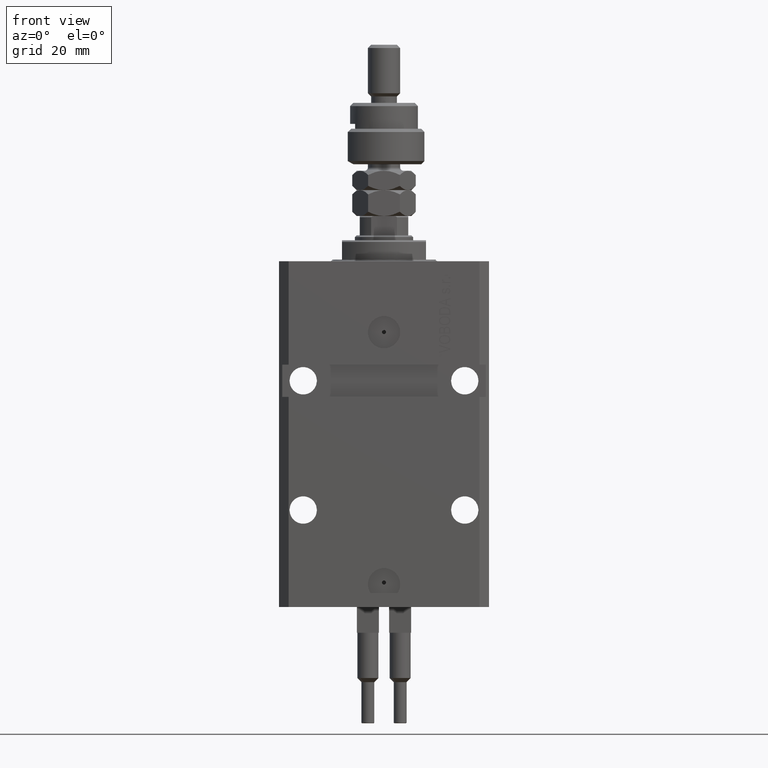
[diagram: clean part render]
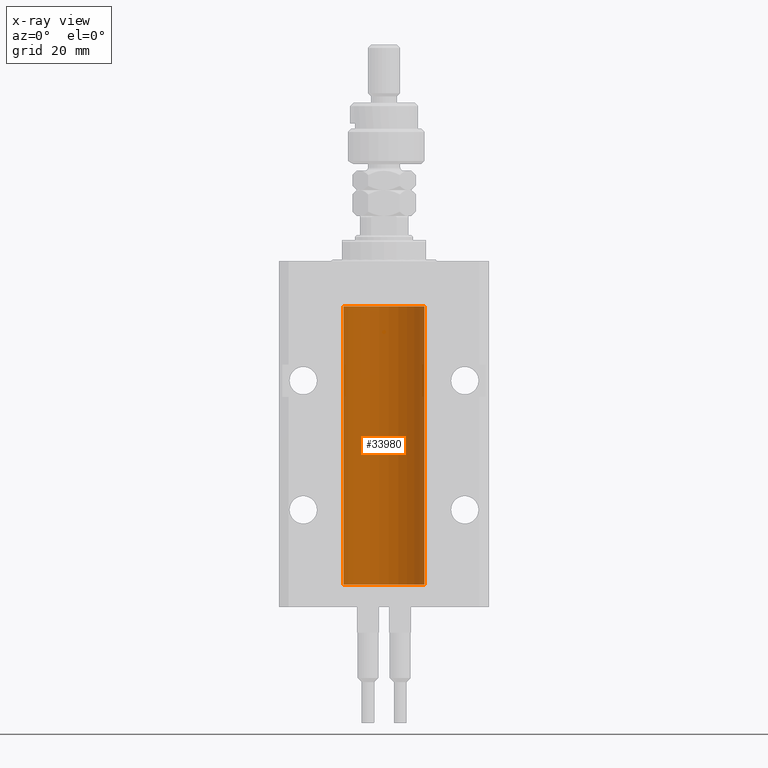
[diagram: x-ray — body ghosted, one internal face saturated and labeled with its STEP entity id]
A machine part, front view, then the same camera in x-ray: the body is ghosted and one INTERNAL B-rep face — a face not visible from any outside direction — is saturated and labeled: STEP entity #33980.
In plain terms, the highlighted cylindrical surface (partial cylindrical patch) has radius 12.5 mm, axis along (0, 0, 1).
Its self-contained STEP definition (entity closure, byte-faithful):
#86 = VERTEX_POINT ( 'NONE', #8034 ) ;
#112 = DIRECTION ( 'NONE',  ( -0.000000000000000000, -0.000000000000000000, 1.000000000000000000 ) ) ;
#888 = CARTESIAN_POINT ( 'NONE',  ( 0.000000000000000000, 0.000000000000000000, -100.0999999999999943 ) ) ;
#1525 = CARTESIAN_POINT ( 'NONE',  ( -12.50000000000000000, -1.522152011595579853E-14, -94.37500000000000000 ) ) ;
#2077 = AXIS2_PLACEMENT_3D ( 'NONE', #50410, #31173, #6291 ) ;
#2123 = CARTESIAN_POINT ( 'NONE',  ( -12.49631005746706514, 0.3253680783018457756, -95.55856740465388555 ) ) ;
#2638 = CARTESIAN_POINT ( 'NONE',  ( -12.49011732893843529, 0.5003763274120274218, -22.38348111289287701 ) ) ;
#2761 = ORIENTED_EDGE ( 'NONE', *, *, #46255, .F. ) ;
#2886 = CARTESIAN_POINT ( 'NONE',  ( -12.49915784441386890, 0.1636601911727947889, -21.39126818989430490 ) ) ;
#3083 = VERTEX_POINT ( 'NONE', #11720 ) ;
#3185 = EDGE_LOOP ( 'NONE', ( #46855, #49772, #20444, #45189, #2761, #49521, #16263, #37123 ) ) ;
#3449 = CARTESIAN_POINT ( 'NONE',  ( 12.50000000000000000, 0.000000000000000000, -100.0999999999999943 ) ) ;
#3738 = EDGE_CURVE ( 'NONE', #41068, #86, #37240, .T. ) ;
#3796 = CARTESIAN_POINT ( 'NONE',  ( 12.50000000000000000, 0.000000000000000000, -100.0999999999999943 ) ) ;
#4514 = FACE_OUTER_BOUND ( 'NONE', #3185, .T. ) ;
#5328 = CARTESIAN_POINT ( 'NONE',  ( 0.000000000000000000, 0.000000000000000000, -13.99999999999999822 ) ) ;
#5493 = CARTESIAN_POINT ( 'NONE',  ( -12.49011732893843529, 0.5003763274120199833, -95.38348111289285214 ) ) ;
#5747 = CARTESIAN_POINT ( 'NONE',  ( -12.49915784441387068, 0.1636601911727894876, -94.39126818989429069 ) ) ;
#6008 = CARTESIAN_POINT ( 'NONE',  ( -12.49422197749723829, 0.3843754434364257122, -94.50047099568094211 ) ) ;
#6291 = DIRECTION ( 'NONE',  ( 1.000000000000000000, 0.000000000000000000, 0.000000000000000000 ) ) ;
#6725 = EDGE_CURVE ( 'NONE', #26195, #15728, #39788, .T. ) ;
#6780 = CARTESIAN_POINT ( 'NONE',  ( -12.50000000000017941, 3.883381646606358354E-13, -22.62500000000358824 ) ) ;
#7543 = CIRCLE ( 'NONE', #39916, 12.50000000000000000 ) ;
#8034 = CARTESIAN_POINT ( 'NONE',  ( -12.50000000000017941, 3.883381774819353300E-13, -95.62500000000359535 ) ) ;
#8131 = DIRECTION ( 'NONE',  ( 1.000000000000000000, 0.000000000000000000, 0.000000000000000000 ) ) ;
#9910 = VERTEX_POINT ( 'NONE', #22582 ) ;
#10394 = CARTESIAN_POINT ( 'NONE',  ( -12.49625855304193678, 0.3150454781038042329, -21.45402800297484802 ) ) ;
#11720 = CARTESIAN_POINT ( 'NONE',  ( -12.50000000000000000, -2.089494013101375120E-17, -21.37499999999999645 ) ) ;
#11830 = CARTESIAN_POINT ( 'NONE',  ( -12.50000000000017941, 3.883381646606358354E-13, -22.62500000000358824 ) ) ;
#12050 = EDGE_CURVE ( 'NONE', #33618, #19441, #35789, .T. ) ;
#12748 = CARTESIAN_POINT ( 'NONE',  ( -12.50000000000017941, 3.883381774819353300E-13, -95.62500000000359535 ) ) ;
#14444 = CIRCLE ( 'NONE', #2077, 12.50000000000000000 ) ;
#14550 = CARTESIAN_POINT ( 'NONE',  ( -12.49999999999999289, 0.1631761135151241215, -22.62499999999984013 ) ) ;
#15398 = B_SPLINE_CURVE_WITH_KNOTS ( 'NONE', 3,
 ( #25459, #17923, #2886, #10394, #26211, #33782, #29879, #22328, #45749, #38194, #2638, #34278, #14550, #6780 ),
 .UNSPECIFIED., .F., .F.,
 ( 4, 2, 2, 2, 2, 2, 4 ),
 ( 2.030551168097110502E-20, 0.0002442924852390969078, 0.0004885849704781938157, 0.0009771699409563880650, 0.001221462426195485135, 0.001465754911434582423, 0.001954339881912776130 ),
 .UNSPECIFIED. ) ;
#15728 = VERTEX_POINT ( 'NONE', #44679 ) ;
#16263 = ORIENTED_EDGE ( 'NONE', *, *, #12050, .F. ) ;
#16432 = CYLINDRICAL_SURFACE ( 'NONE', #48787, 12.50000000000000000 ) ;
#16901 = CARTESIAN_POINT ( 'NONE',  ( -12.48809959379011403, 0.5462151254764922026, -95.31461370481613926 ) ) ;
#17923 = CARTESIAN_POINT ( 'NONE',  ( -12.50000000000000000, 0.08260426088729219685, -21.37500000000000000 ) ) ;
#18322 = B_SPLINE_CURVE_WITH_KNOTS ( 'NONE', 3,
 ( #41575, #48347, #5747, #28819, #6008, #21810, #21565, #49116, #24666, #16901, #5493, #2123, #32746, #12748 ),
 .UNSPECIFIED., .F., .F.,
 ( 4, 2, 2, 2, 2, 2, 4 ),
 ( 3.486178718436696769E-18, 0.0002442924852390829216, 0.0004885849704781623738, 0.0009771699409563507684, 0.001221462426195465403, 0.001465754911434580254, 0.001954339881912780900 ),
 .UNSPECIFIED. ) ;
#19436 = LINE ( 'NONE', #31373, #24867 ) ;
#19441 = VERTEX_POINT ( 'NONE', #11830 ) ;
#20444 = ORIENTED_EDGE ( 'NONE', *, *, #6725, .T. ) ;
#21565 = CARTESIAN_POINT ( 'NONE',  ( -12.48436813453758631, 0.6249418250771134886, -94.83668996798924411 ) ) ;
#21810 = CARTESIAN_POINT ( 'NONE',  ( -12.48810268015257741, 0.5573155909661239304, -94.67347410093871929 ) ) ;
#22328 = CARTESIAN_POINT ( 'NONE',  ( -12.48436376893640443, 0.6250290278979917513, -22.08132082824473486 ) ) ;
#22582 = CARTESIAN_POINT ( 'NONE',  ( -12.50000000000000000, 1.530808498934191521E-15, -13.99999999999999822 ) ) ;
#22890 = DIRECTION ( 'NONE',  ( -0.000000000000000000, -0.000000000000000000, 1.000000000000000000 ) ) ;
#23462 = EDGE_CURVE ( 'NONE', #26195, #41068, #14444, .T. ) ;
#24079 = CARTESIAN_POINT ( 'NONE',  ( -12.50000000000000000, 1.530808498934191521E-15, -100.0999999999999943 ) ) ;
#24666 = CARTESIAN_POINT ( 'NONE',  ( -12.48520330846397997, 0.6088355886774070580, -95.16325431852561678 ) ) ;
#24740 = DIRECTION ( 'NONE',  ( -0.000000000000000000, -0.000000000000000000, 1.000000000000000000 ) ) ;
#24867 = VECTOR ( 'NONE', #43868, 1000.000000000000000 ) ;
#25459 = CARTESIAN_POINT ( 'NONE',  ( -12.50000000000000000, -2.089494013101375120E-17, -21.37499999999999645 ) ) ;
#26195 = VERTEX_POINT ( 'NONE', #3796 ) ;
#26211 = CARTESIAN_POINT ( 'NONE',  ( -12.49422197749724006, 0.3843754434364375916, -21.50047099568095277 ) ) ;
#28819 = CARTESIAN_POINT ( 'NONE',  ( -12.49625855304194033, 0.3150454781037993479, -94.45402800297488000 ) ) ;
#28914 = DIRECTION ( 'NONE',  ( 1.000000000000000000, 0.000000000000000000, 0.000000000000000000 ) ) ;
#29879 = CARTESIAN_POINT ( 'NONE',  ( -12.48436813453758454, 0.6249418250771192618, -21.83668996798922635 ) ) ;
#31173 = DIRECTION ( 'NONE',  ( 0.000000000000000000, 0.000000000000000000, 1.000000000000000000 ) ) ;
#31373 = CARTESIAN_POINT ( 'NONE',  ( -12.50000000000000000, 1.530808498934191521E-15, -100.0999999999999943 ) ) ;
#32746 = CARTESIAN_POINT ( 'NONE',  ( -12.49999999999999112, 0.1631761135151224562, -95.62499999999980105 ) ) ;
#33618 = VERTEX_POINT ( 'NONE', #1525 ) ;
#33782 = CARTESIAN_POINT ( 'NONE',  ( -12.48810268015257563, 0.5573155909661349217, -21.67347410093867666 ) ) ;
#33980 = ADVANCED_FACE ( 'NONE', ( #4514 ), #16432, .F. ) ;
#34278 = CARTESIAN_POINT ( 'NONE',  ( -12.49631005746706336, 0.3253680783018528255, -22.55856740465392463 ) ) ;
#35649 = EDGE_CURVE ( 'NONE', #3083, #19441, #15398, .T. ) ;
#35789 = LINE ( 'NONE', #24079, #48051 ) ;
#36723 = CARTESIAN_POINT ( 'NONE',  ( -12.50000000000000000, 1.530808498934191521E-15, -100.0999999999999943 ) ) ;
#37123 = ORIENTED_EDGE ( 'NONE', *, *, #38963, .T. ) ;
#37240 = LINE ( 'NONE', #36723, #46083 ) ;
#38194 = CARTESIAN_POINT ( 'NONE',  ( -12.48809959379011403, 0.5462151254764975317, -22.31461370481611795 ) ) ;
#38963 = EDGE_CURVE ( 'NONE', #33618, #86, #18322, .T. ) ;
#39788 = LINE ( 'NONE', #3449, #48724 ) ;
#39916 = AXIS2_PLACEMENT_3D ( 'NONE', #5328, #49202, #28914 ) ;
#39962 = DIRECTION ( 'NONE',  ( -0.000000000000000000, -0.000000000000000000, 1.000000000000000000 ) ) ;
#41068 = VERTEX_POINT ( 'NONE', #45432 ) ;
#41575 = CARTESIAN_POINT ( 'NONE',  ( -12.50000000000000000, -1.522152011595579853E-14, -94.37500000000000000 ) ) ;
#43868 = DIRECTION ( 'NONE',  ( -0.000000000000000000, -0.000000000000000000, 1.000000000000000000 ) ) ;
#44679 = CARTESIAN_POINT ( 'NONE',  ( 12.50000000000000000, 0.000000000000000000, -13.99999999999999822 ) ) ;
#45189 = ORIENTED_EDGE ( 'NONE', *, *, #48316, .T. ) ;
#45432 = CARTESIAN_POINT ( 'NONE',  ( -12.50000000000000000, 1.530808498934191521E-15, -100.0999999999999943 ) ) ;
#45749 = CARTESIAN_POINT ( 'NONE',  ( -12.48520330846397819, 0.6088355886774127201, -22.16325431852561323 ) ) ;
#46083 = VECTOR ( 'NONE', #24740, 1000.000000000000000 ) ;
#46255 = EDGE_CURVE ( 'NONE', #3083, #9910, #19436, .T. ) ;
#46855 = ORIENTED_EDGE ( 'NONE', *, *, #3738, .F. ) ;
#48051 = VECTOR ( 'NONE', #39962, 1000.000000000000000 ) ;
#48316 = EDGE_CURVE ( 'NONE', #15728, #9910, #7543, .T. ) ;
#48347 = CARTESIAN_POINT ( 'NONE',  ( -12.50000000000000000, 0.08260426088727994276, -94.37499999999998579 ) ) ;
#48724 = VECTOR ( 'NONE', #22890, 1000.000000000000000 ) ;
#48787 = AXIS2_PLACEMENT_3D ( 'NONE', #888, #112, #8131 ) ;
#49116 = CARTESIAN_POINT ( 'NONE',  ( -12.48436376893640620, 0.6250290278979871994, -95.08132082824478459 ) ) ;
#49202 = DIRECTION ( 'NONE',  ( 0.000000000000000000, 0.000000000000000000, 1.000000000000000000 ) ) ;
#49521 = ORIENTED_EDGE ( 'NONE', *, *, #35649, .T. ) ;
#49772 = ORIENTED_EDGE ( 'NONE', *, *, #23462, .F. ) ;
#50410 = CARTESIAN_POINT ( 'NONE',  ( 0.000000000000000000, 0.000000000000000000, -100.0999999999999943 ) ) ;